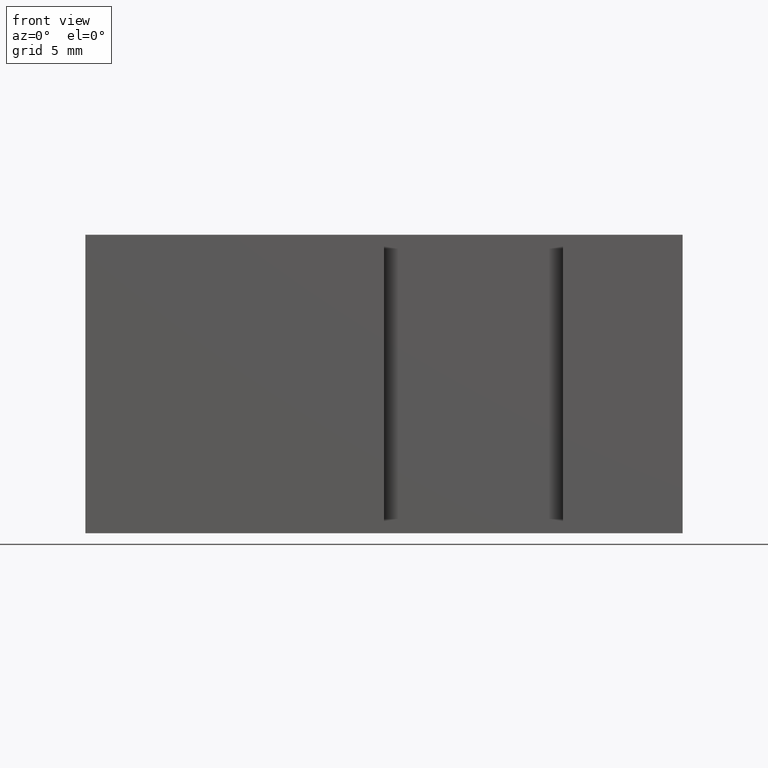
[diagram: clean part render]
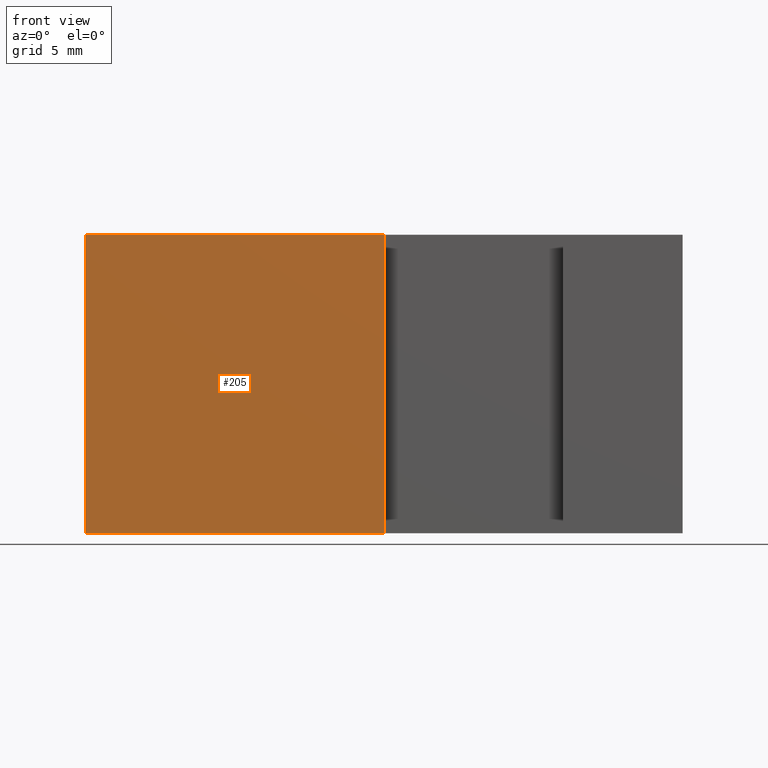
[diagram: same view with one face highlighted and labeled with its STEP entity id]
A machine part, front view. The second image highlights one B-rep face of the part: STEP entity #205.
In plain terms, the highlighted planar face has unit normal (0, -1, 0).
Its self-contained STEP definition (entity closure, byte-faithful):
#19=FACE_OUTER_BOUND('',#30,.T.);
#30=EDGE_LOOP('',(#157,#158,#159,#160));
#42=LINE('',#311,#69);
#52=LINE('',#330,#79);
#53=LINE('',#333,#80);
#54=LINE('',#334,#81);
#69=VECTOR('',#255,10.);
#79=VECTOR('',#271,10.);
#80=VECTOR('',#274,10.);
#81=VECTOR('',#275,10.);
#96=VERTEX_POINT('',#308);
#97=VERTEX_POINT('',#310);
#103=VERTEX_POINT('',#328);
#104=VERTEX_POINT('',#332);
#114=EDGE_CURVE('',#97,#96,#42,.T.);
#124=EDGE_CURVE('',#103,#96,#52,.T.);
#125=EDGE_CURVE('',#103,#104,#53,.T.);
#126=EDGE_CURVE('',#104,#97,#54,.T.);
#157=ORIENTED_EDGE('',*,*,#125,.T.);
#158=ORIENTED_EDGE('',*,*,#126,.T.);
#159=ORIENTED_EDGE('',*,*,#114,.T.);
#160=ORIENTED_EDGE('',*,*,#124,.F.);
#194=PLANE('',#239);
#205=ADVANCED_FACE('',(#19),#194,.T.);
#239=AXIS2_PLACEMENT_3D('',#331,#272,#273);
#255=DIRECTION('',(1.,3.67394039744206E-16,0.));
#271=DIRECTION('',(0.,0.,-1.));
#272=DIRECTION('center_axis',(3.67394039744206E-16,-1.,0.));
#273=DIRECTION('ref_axis',(0.,0.,-1.));
#274=DIRECTION('',(-1.,-3.67394039744206E-16,0.));
#275=DIRECTION('',(0.,0.,-1.));
#308=CARTESIAN_POINT('',(-20.,5.74670060565057E-15,-10.));
#310=CARTESIAN_POINT('',(-40.,-1.60118018923355E-15,-10.));
#311=CARTESIAN_POINT('',(-20.,5.74670060565057E-15,-10.));
#328=CARTESIAN_POINT('',(-20.,5.74670060565057E-15,10.));
#330=CARTESIAN_POINT('',(-20.,5.74670060565057E-15,0.));
#331=CARTESIAN_POINT('Origin',(-20.,5.74670060565057E-15,0.));
#332=CARTESIAN_POINT('',(-40.,-1.60118018923355E-15,10.));
#333=CARTESIAN_POINT('',(-20.,5.74670060565057E-15,10.));
#334=CARTESIAN_POINT('',(-40.,-1.60118018923355E-15,0.));